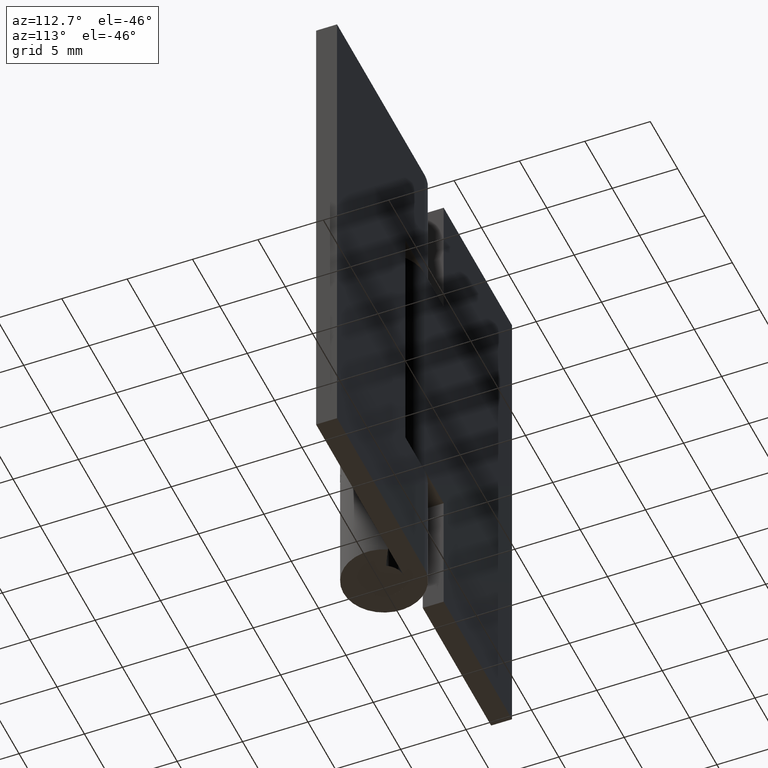
[diagram: clean part render]
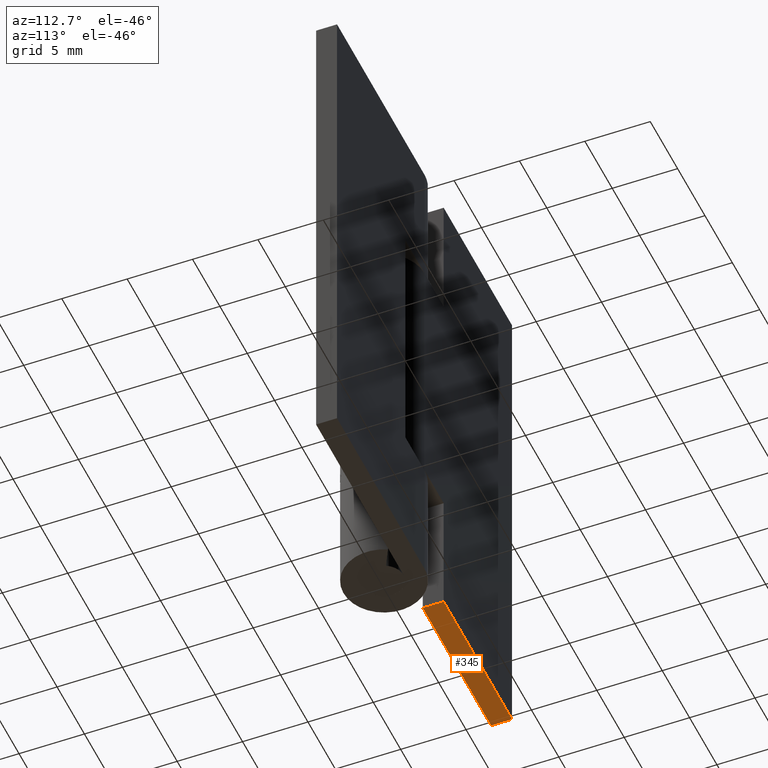
[diagram: same view with one face highlighted and labeled with its STEP entity id]
A machine part, auxiliary view. The second image highlights one B-rep face of the part: STEP entity #345.
In plain terms, the highlighted face is a freeform B-spline surface patch.
Its self-contained STEP definition (entity closure, byte-faithful):
#51=CARTESIAN_POINT('',(-3.500000000000100,1.500000000000000,0.0));
#52=VERTEX_POINT('',#51);
#58=CARTESIAN_POINT('',(-3.500000000000100,3.099998000000050,0.0));
#59=VERTEX_POINT('',#58);
#60=CARTESIAN_POINT('',(-3.500000000000100,1.500000000000000,0.0));
#61=CARTESIAN_POINT('',(-3.500000000000100,3.099998000000050,0.0));
#62=QUASI_UNIFORM_CURVE('',1,(#60,#61),.UNSPECIFIED.,.F.,.U.);
#63=EDGE_CURVE('',#52,#59,#62,.T.);
#275=CARTESIAN_POINT('',(-16.0,3.099998000000000,0.0));
#276=VERTEX_POINT('',#275);
#277=CARTESIAN_POINT('',(-16.0,1.500000000000000,0.0));
#278=VERTEX_POINT('',#277);
#279=CARTESIAN_POINT('',(-16.0,3.099998000000000,0.0));
#280=CARTESIAN_POINT('',(-16.0,1.500000000000000,0.0));
#281=QUASI_UNIFORM_CURVE('',1,(#279,#280),.UNSPECIFIED.,.F.,.U.);
#282=EDGE_CURVE('',#276,#278,#281,.T.);
#326=CARTESIAN_POINT('',(-16.624374975772572,1.420080103001104,0.0));
#327=CARTESIAN_POINT('',(-2.875624688951403,1.420080103001104,0.0));
#328=CARTESIAN_POINT('',(-16.624374975772572,3.179917939914236,0.0));
#329=CARTESIAN_POINT('',(-2.875624688951403,3.179917939914236,0.0));
#330=B_SPLINE_SURFACE_WITH_KNOTS('',1,1,((#326,#328),(#327,#329)),.UNSPECIFIED.,.F.,.F.,.U.,(2,2),(2,2),(0.0,13.748750286821171),(0.041708334948495,0.958291687403247),.UNSPECIFIED.);
#331=CARTESIAN_POINT('',(-3.500000000000100,3.099998000000050,0.0));
#332=CARTESIAN_POINT('',(-16.0,3.099998000000000,0.0));
#333=QUASI_UNIFORM_CURVE('',1,(#331,#332),.UNSPECIFIED.,.F.,.U.);
#334=EDGE_CURVE('',#59,#276,#333,.T.);
#335=ORIENTED_EDGE('',*,*,#334,.F.);
#336=ORIENTED_EDGE('',*,*,#63,.F.);
#337=CARTESIAN_POINT('',(-16.0,1.500000000000000,0.0));
#338=CARTESIAN_POINT('',(-3.500000000000100,1.500000000000000,0.0));
#339=QUASI_UNIFORM_CURVE('',1,(#337,#338),.UNSPECIFIED.,.F.,.U.);
#340=EDGE_CURVE('',#278,#52,#339,.T.);
#341=ORIENTED_EDGE('',*,*,#340,.F.);
#342=ORIENTED_EDGE('',*,*,#282,.F.);
#343=EDGE_LOOP('',(#335,#336,#341,#342));
#344=FACE_OUTER_BOUND('',#343,.T.);
#345=ADVANCED_FACE('',(#344),#330,.F.);